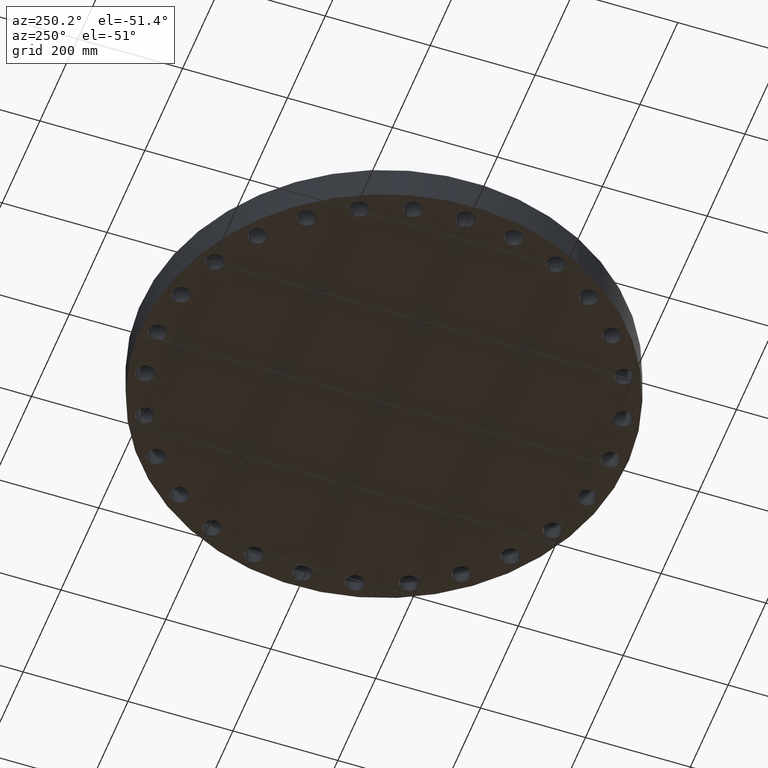
[diagram: clean part render]
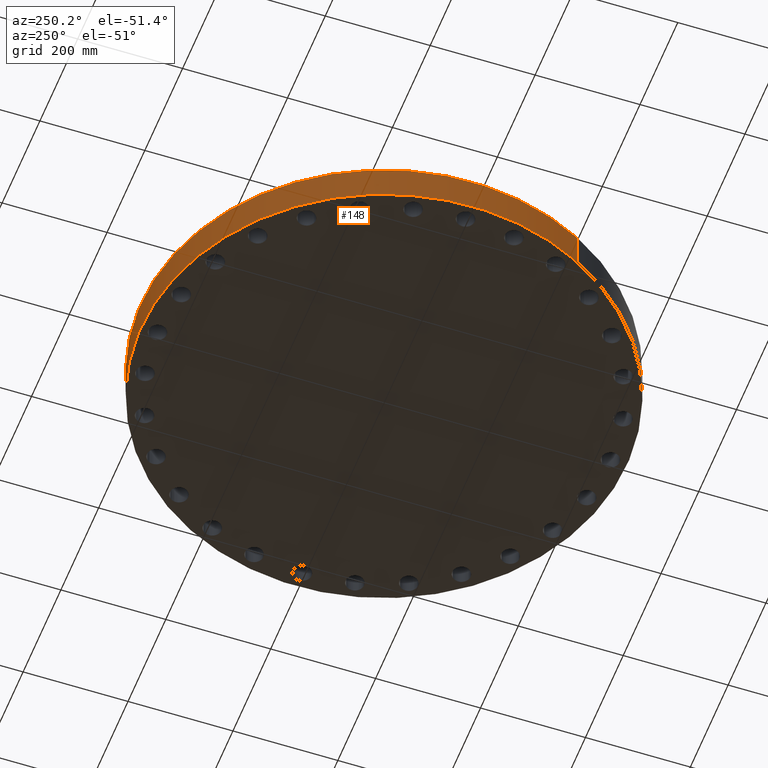
[diagram: same view with one face highlighted and labeled with its STEP entity id]
A machine part, auxiliary view. The second image highlights one B-rep face of the part: STEP entity #148.
In plain terms, the highlighted cylindrical surface (partial cylindrical patch) has radius 463.55 mm, axis along (0, 0, 1).
Its self-contained STEP definition (entity closure, byte-faithful):
#95=AXIS2_PLACEMENT_3D('Cylinder Axis2P3D',#92,#93,#94) ;
#134=AXIS2_PLACEMENT_3D('Circle Axis2P3D',#132,#133,$) ;
#139=AXIS2_PLACEMENT_3D('Circle Axis2P3D',#137,#138,$) ;
#92=CARTESIAN_POINT('Axis2P3D Location',(0.,0.,1.37500000001)) ;
#97=CARTESIAN_POINT('Line Origine',(16.0158817546,8.74951607956,1.37500000001)) ;
#101=CARTESIAN_POINT('Vertex',(16.0158817546,8.74951607956,0.)) ;
#103=CARTESIAN_POINT('Vertex',(16.0158817546,8.74951607956,2.75000000001)) ;
#110=CARTESIAN_POINT('Vertex',(-16.0158817546,-8.74951607956,2.75000000001)) ;
#113=CARTESIAN_POINT('Line Origine',(-16.0158817546,-8.74951607956,1.37500000001)) ;
#117=CARTESIAN_POINT('Vertex',(-16.0158817546,-8.74951607956,0.)) ;
#132=CARTESIAN_POINT('Axis2P3D Location',(0.,0.,2.75000000001)) ;
#137=CARTESIAN_POINT('Axis2P3D Location',(0.,0.,0.)) ;
#93=DIRECTION('Axis2P3D Direction',(0.,0.,0.0393700787402)) ;
#94=DIRECTION('Axis2P3D XDirection',(0.0345504945626,0.0188750212049,0.)) ;
#98=DIRECTION('Vector Direction',(0.,0.,0.0393700787402)) ;
#114=DIRECTION('Vector Direction',(0.,0.,0.0393700787402)) ;
#133=DIRECTION('Axis2P3D Direction',(0.,0.,0.0393700787402)) ;
#138=DIRECTION('Axis2P3D Direction',(0.,0.,0.0393700787402)) ;
#99=VECTOR('Line Direction',#98,0.0393700787402) ;
#115=VECTOR('Line Direction',#114,0.0393700787402) ;
#143=ORIENTED_EDGE('',*,*,#119,.T.) ;
#144=ORIENTED_EDGE('',*,*,#136,.F.) ;
#145=ORIENTED_EDGE('',*,*,#105,.F.) ;
#146=ORIENTED_EDGE('',*,*,#141,.T.) ;
#148=ADVANCED_FACE('PartBody',(#147),#96,.T.) ;
#135=CIRCLE('generated circle',#134,18.2500000001) ;
#140=CIRCLE('generated circle',#139,18.2500000001) ;
#96=CYLINDRICAL_SURFACE('generated cylinder',#95,18.2500000001) ;
#105=EDGE_CURVE('',#102,#104,#100,.T.) ;
#119=EDGE_CURVE('',#118,#111,#116,.T.) ;
#136=EDGE_CURVE('',#104,#111,#135,.T.) ;
#141=EDGE_CURVE('',#102,#118,#140,.T.) ;
#142=EDGE_LOOP('',(#143,#144,#145,#146)) ;
#147=FACE_OUTER_BOUND('',#142,.T.) ;
#100=LINE('Line',#97,#99) ;
#116=LINE('Line',#113,#115) ;
#102=VERTEX_POINT('',#101) ;
#104=VERTEX_POINT('',#103) ;
#111=VERTEX_POINT('',#110) ;
#118=VERTEX_POINT('',#117) ;